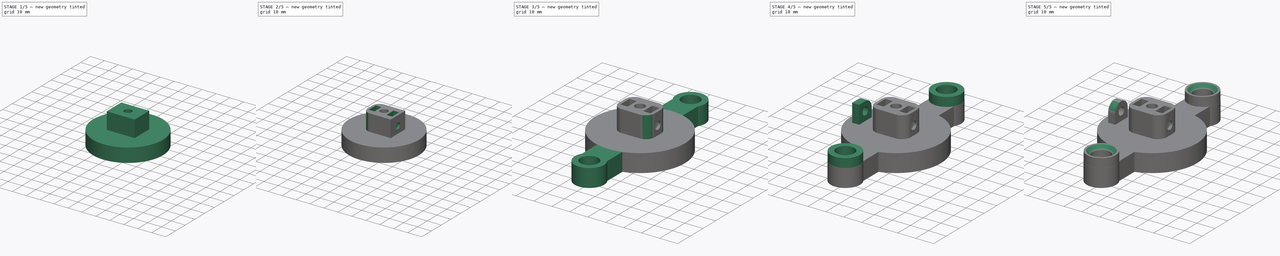
[diagram: build sequence overview — one tinted view per stage of 5, left to right]
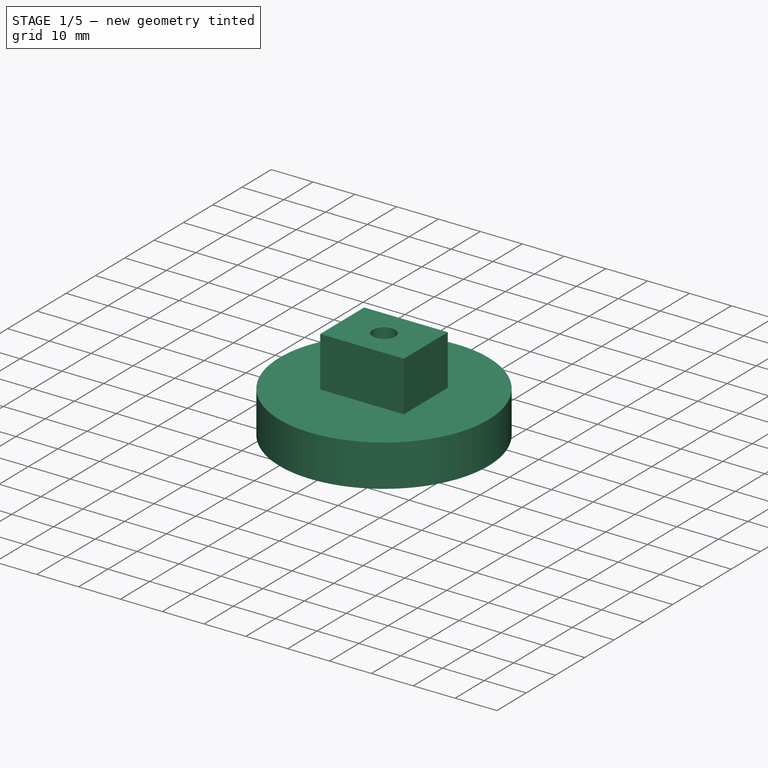
[diagram: stage 1 of 5 — iso view after this stage's code; geometry added in this stage tinted green]
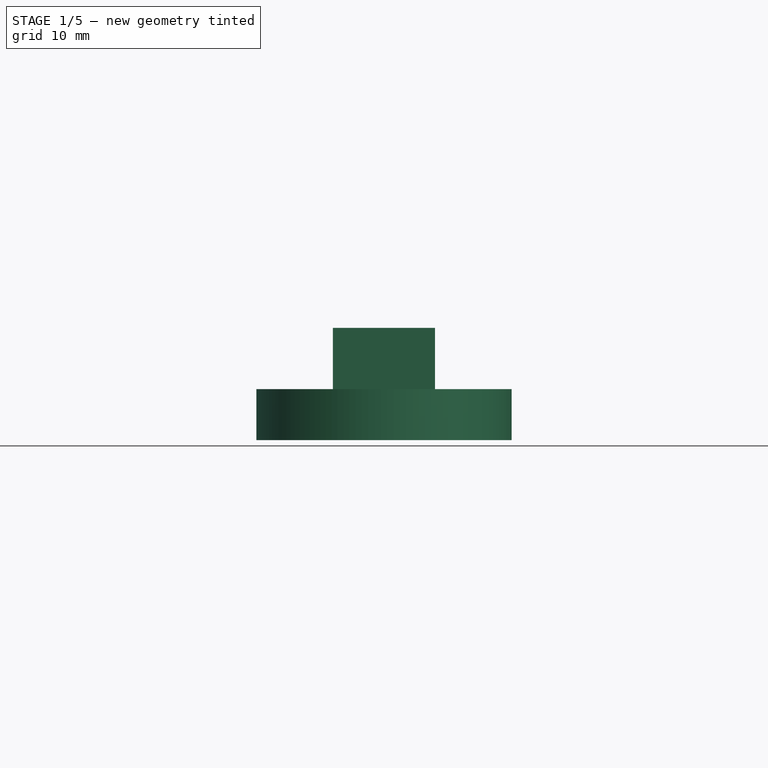
[diagram: stage 1 of 5 — front view after this stage's code; geometry added in this stage tinted green]
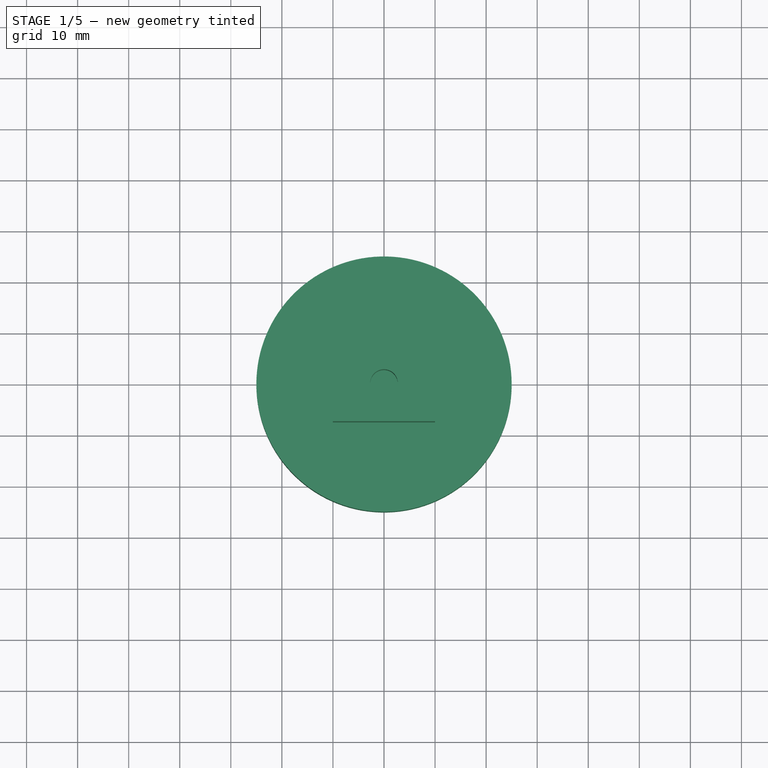
[diagram: stage 1 of 5 — top view after this stage's code; geometry added in this stage tinted green]
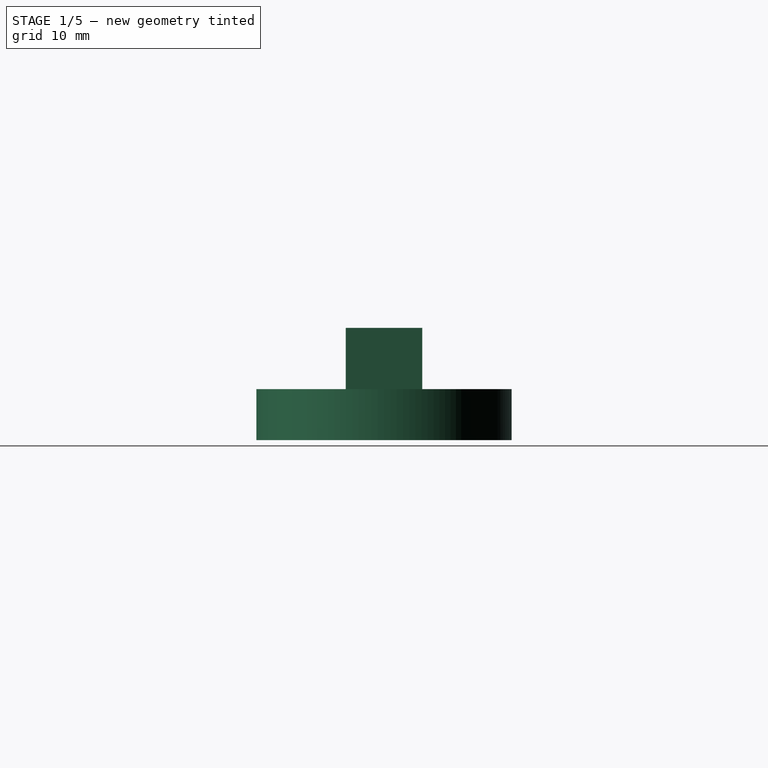
[diagram: stage 1 of 5 — right view after this stage's code; geometry added in this stage tinted green]
FCSTD DOCUMENT  (FreeCAD 0.18R16117 (Git))
Label: TCM2 - Pressa
License: All rights reserved
LicenseURL: http://en.wikipedia.org/wiki/All_rights_reserved
objects: Sketcher::SketchObject×9, PartDesign::Fillet×6, PartDesign::Pad×5, PartDesign::Pocket×4, PartDesign::Chamfer×2, PartDesign::Body×1
note: 36 computed .brp shape members not serialized (recipe doc carries the construction recipe); baked Part::Feature solids carry a one-line shape summary decoded from their .brp

FEATURE [Sketcher::SketchObject] Sketch
  MapMode = 5
  Support = -> [XY_Plane]
  sketch-geometry (1):
    g0: Circle CenterX=0 CenterY=0 CenterZ=0 NormalX=0 NormalY=0 NormalZ=1 AngleXU=0 Radius=25
  constraints (2):
    c: Coincident(g-1,g0)
    c: Radius(g0) = 25
FEATURE [PartDesign::Pad] Pad
  Length = 10
  Length2 = 100
  Profile = -> Sketch
  Type = 0
FEATURE [Sketcher::SketchObject] Sketch001
  MapMode = 5
  Placement = pos=(0,0,10) rot=(0,0,1;0rad)
  Support = -> [Pad]
  sketch-geometry (4):
    g0: LineSegment StartX=-10 StartY=7.5 StartZ=0 EndX=10 EndY=7.5 EndZ=0
    g1: LineSegment StartX=10 StartY=7.5 StartZ=0 EndX=10 EndY=-7.5 EndZ=0
    g2: LineSegment StartX=10 StartY=-7.5 StartZ=0 EndX=-10 EndY=-7.5 EndZ=0
    g3: LineSegment StartX=-10 StartY=-7.5 StartZ=0 EndX=-10 EndY=7.5 EndZ=0
  constraints (12):
    c: Coincident(g0,g1)
    c: Coincident(g1,g2)
    c: Coincident(g2,g3)
    c: Coincident(g3,g0)
    c: Horizontal(g0)
    c: Horizontal(g2)
    c: Vertical(g1)
    c: Vertical(g3)
    c: Distance(g1) = 15
    c: Distance(g0) = 20
    c: DistanceY(g-1,g0) = 7.5
    c: DistanceX(g0,g-1) = 10
FEATURE [PartDesign::Pad] Pad001
  BaseFeature = -> Pad
  Length = 12
  Length2 = 100
  Profile = -> Sketch001
  Type = 0
FEATURE [Sketcher::SketchObject] Sketch002
  MapMode = 5
  Placement = pos=(0,0,22) rot=(0,0,1;0rad)
  Support = -> [Pad001]
  sketch-geometry (1):
    g0: Circle CenterX=0 CenterY=0 CenterZ=0 NormalX=0 NormalY=0 NormalZ=1 AngleXU=0 Radius=2.7
  constraints (2):
    c: Radius(g0) = 2.7
    c: Coincident(g0,g-1)
FEATURE [PartDesign::Pocket] Pocket
  BaseFeature = -> Pad001
  Length = 10
  Length2 = 100
  Profile = -> Sketch002
  Type = 0
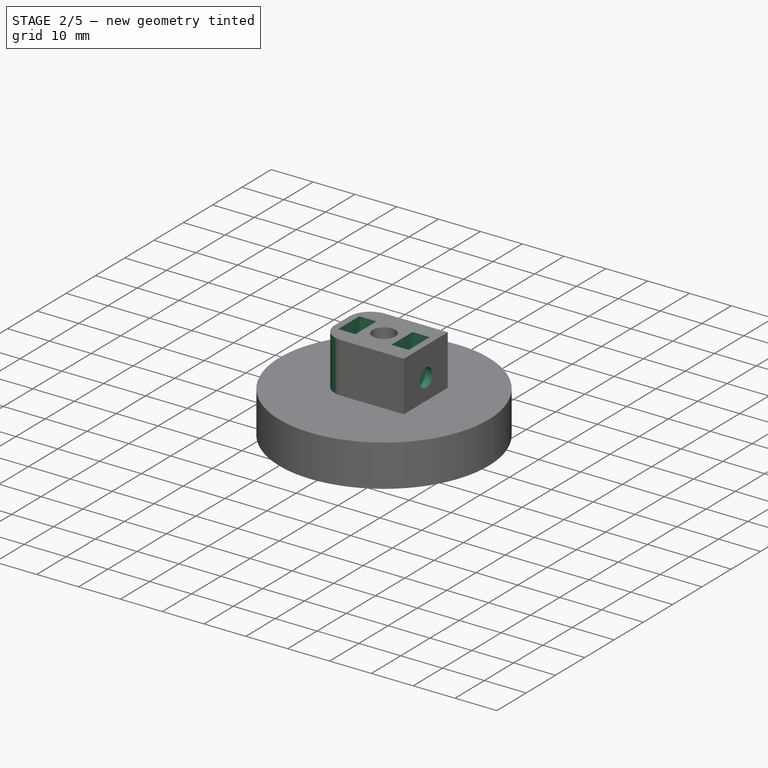
[diagram: stage 2 of 5 — iso view after this stage's code; geometry added in this stage tinted green]
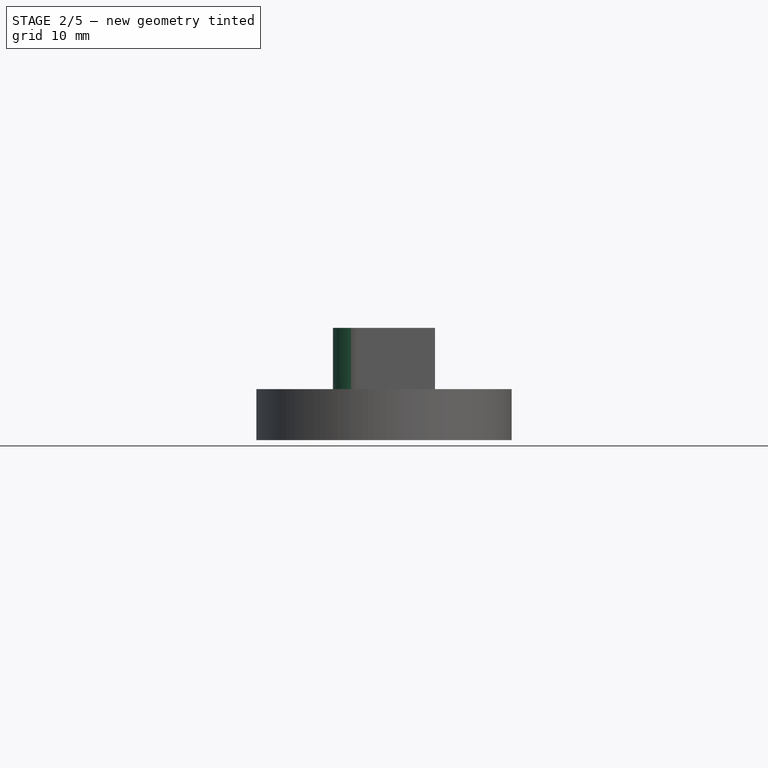
[diagram: stage 2 of 5 — front view after this stage's code; geometry added in this stage tinted green]
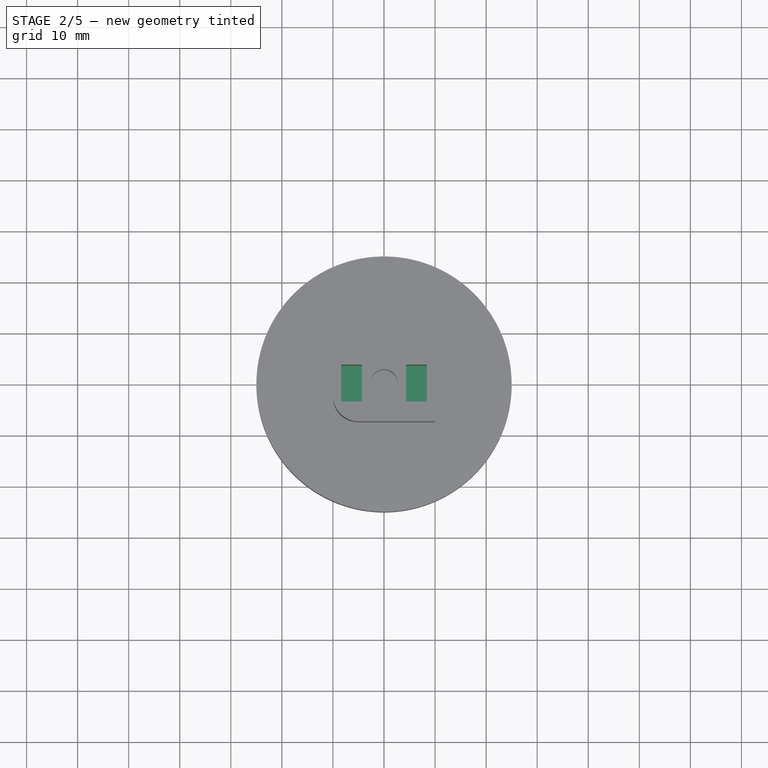
[diagram: stage 2 of 5 — top view after this stage's code; geometry added in this stage tinted green]
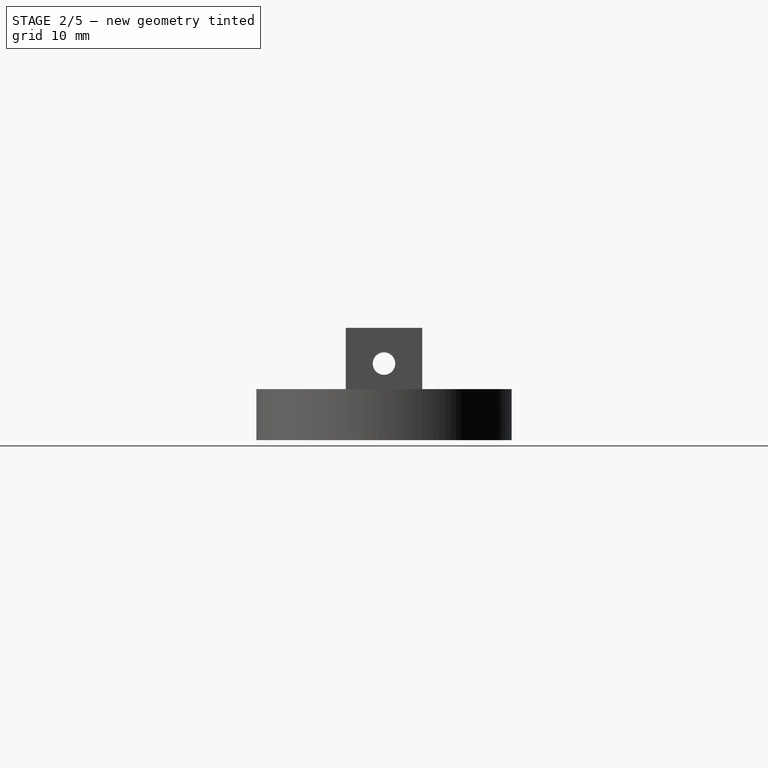
[diagram: stage 2 of 5 — right view after this stage's code; geometry added in this stage tinted green]
FEATURE [Sketcher::SketchObject] Sketch003
  MapMode = 5
  Placement = pos=(0,0,22) rot=(0,0,1;0rad)
  Support = -> [Pocket]
  sketch-geometry (8):
    g0: LineSegment StartX=-8.4 StartY=3.6 StartZ=0 EndX=-4.3 EndY=3.6 EndZ=0
    g1: LineSegment StartX=-4.3 StartY=3.6 StartZ=0 EndX=-4.3 EndY=-3.6 EndZ=0
    g2: LineSegment StartX=-4.3 StartY=-3.6 StartZ=0 EndX=-8.4 EndY=-3.6 EndZ=0
    g3: LineSegment StartX=-8.4 StartY=-3.6 StartZ=0 EndX=-8.4 EndY=3.6 EndZ=0
    g4: LineSegment StartX=4.3 StartY=3.6 StartZ=0 EndX=8.4 EndY=3.6 EndZ=0
    g5: LineSegment StartX=8.4 StartY=3.6 StartZ=0 EndX=8.4 EndY=-3.6 EndZ=0
    g6: LineSegment StartX=8.4 StartY=-3.6 StartZ=0 EndX=4.3 EndY=-3.6 EndZ=0
    g7: LineSegment StartX=4.3 StartY=-3.6 StartZ=0 EndX=4.3 EndY=3.6 EndZ=0
  constraints (24):
    c: Coincident(g0,g1)
    c: Coincident(g1,g2)
    c: Coincident(g2,g3)
    c: Coincident(g3,g0)
    c: Horizontal(g0)
    c: Horizontal(g2)
    c: Vertical(g1)
    c: Vertical(g3)
    c: Distance(g0) = 4.1
    c: DistanceX(g0,g-1) = 4.3
    c: Coincident(g4,g5)
    c: Coincident(g5,g6)
    c: Coincident(g6,g7)
    c: Coincident(g7,g4)
    c: Horizontal(g4)
    c: Horizontal(g6)
    c: Vertical(g5)
    c: Vertical(g7)
    c: Distance(g4) = 4.1
    c: Distance(g7) = 7.2
    c: Distance(g1) = 7.2
    c: DistanceY(g-1,g0) = 3.6
    c: DistanceY(g-1,g4) = 3.6
    c: DistanceX(g-1,g4) = 4.3
FEATURE [PartDesign::Pocket] Pocket001
  BaseFeature = -> Pocket
  Length = 12
  Length2 = 100
  Profile = -> Sketch003
  Type = 0
FEATURE [Sketcher::SketchObject] Sketch004
  MapMode = 5
  Placement = pos=(10,0,0) rot=(0.57735,0.57735,0.57735;2.0944rad)
  Support = -> [Pocket001]
  sketch-geometry (1):
    g0: Circle CenterX=0 CenterY=15 CenterZ=0 NormalX=0 NormalY=0 NormalZ=1 AngleXU=0 Radius=2.2
  constraints (3):
    c: PointOnObject(g0,g-2)
    c: Radius(g0) = 2.2
    c: DistanceY(g-1,g0) = 15
FEATURE [PartDesign::Pocket] Pocket002
  BaseFeature = -> Pocket001
  Length = 30
  Length2 = 100
  Profile = -> Sketch004
  Type = 0
FEATURE [PartDesign::Fillet] Fillet
  Base = -> Pocket002 [Edge8]
  BaseFeature = -> Pocket002
  Radius = 5
FEATURE [PartDesign::Fillet] Fillet001
  Base = -> Fillet [Edge8]
  BaseFeature = -> Fillet
  Radius = 5
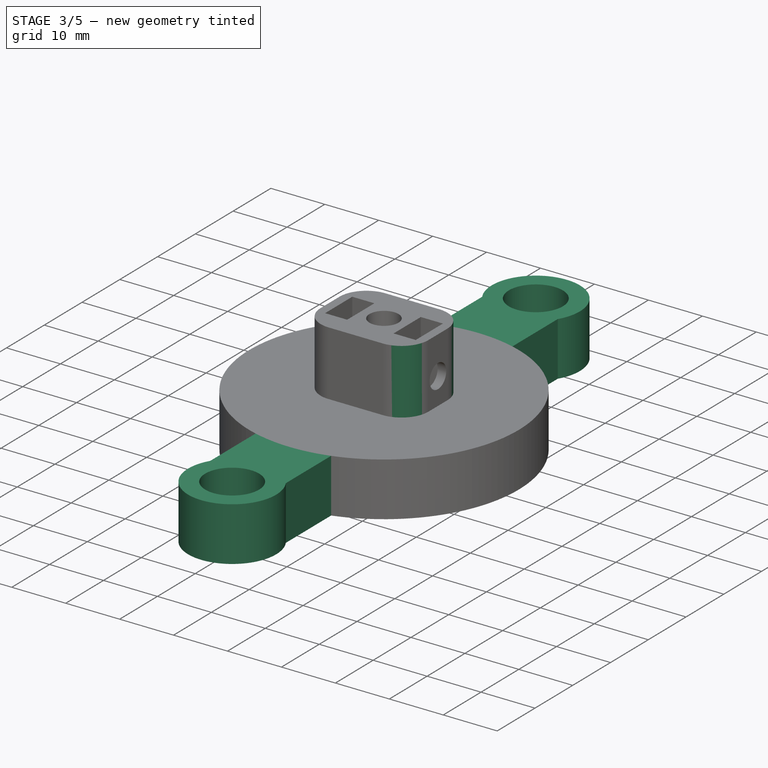
[diagram: stage 3 of 5 — iso view after this stage's code; geometry added in this stage tinted green]
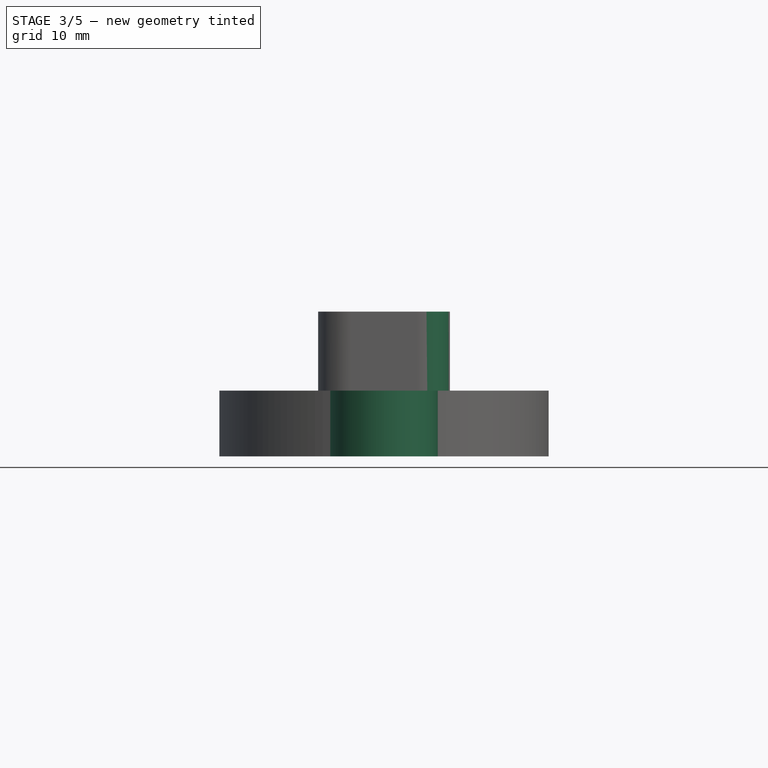
[diagram: stage 3 of 5 — front view after this stage's code; geometry added in this stage tinted green]
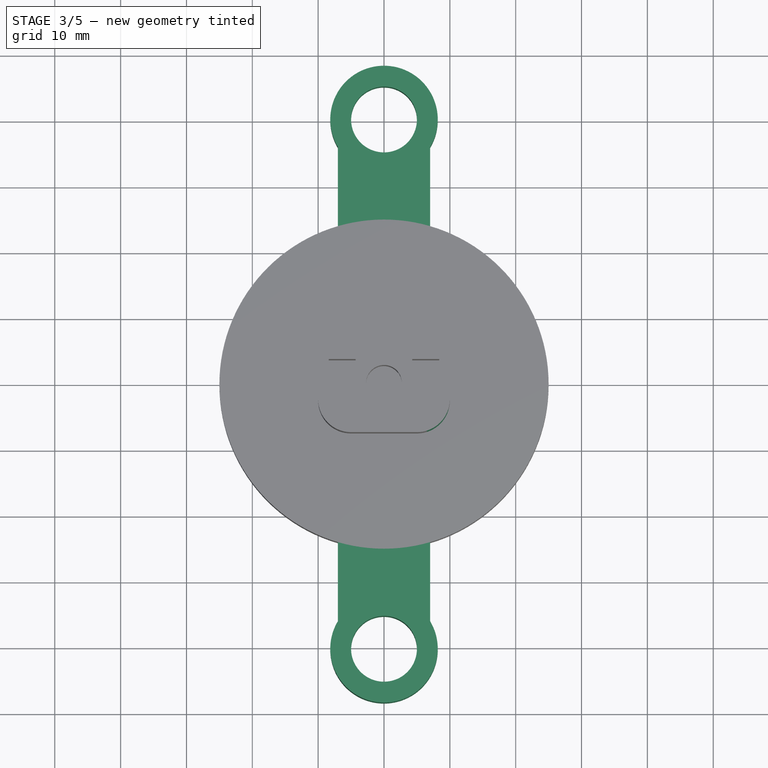
[diagram: stage 3 of 5 — top view after this stage's code; geometry added in this stage tinted green]
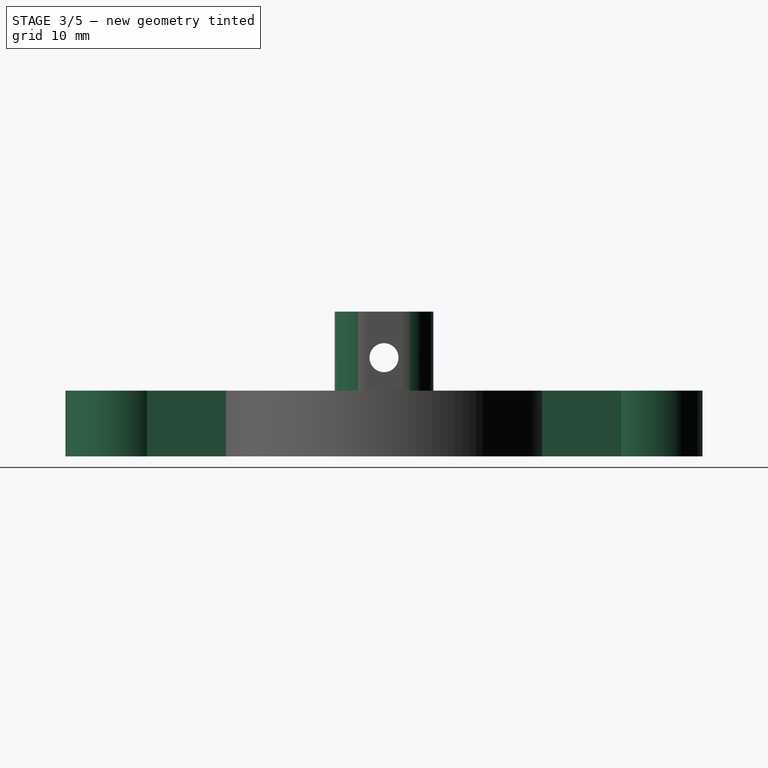
[diagram: stage 3 of 5 — right view after this stage's code; geometry added in this stage tinted green]
FEATURE [PartDesign::Fillet] Fillet002
  Base = -> Fillet001 [Edge16]
  BaseFeature = -> Fillet001
  Radius = 5
FEATURE [PartDesign::Fillet] Fillet003
  Base = -> Fillet002 [Edge16]
  BaseFeature = -> Fillet002
  Radius = 5
FEATURE [Sketcher::SketchObject] Sketch005
  MapMode = 5
  Placement = pos=(0,0,10) rot=(0,0,1;0rad)
  Support = -> [Fillet003]
  sketch-geometry (8):
    g0: LineSegment StartX=-7 StartY=36 StartZ=0 EndX=-7 EndY=-36 EndZ=0
    g1: LineSegment StartX=7 StartY=36 StartZ=0 EndX=7 EndY=-36 EndZ=0
    g2: ArcOfCircle CenterX=9e-16 CenterY=-40.2 CenterZ=0 NormalX=0 NormalY=0 NormalZ=1 AngleXU=0 Radius=8.16333 StartAngle=2.60117 EndAngle=4.71239
    g3: ArcOfCircle CenterX=9e-16 CenterY=-40.2 CenterZ=0 NormalX=0 NormalY=0 NormalZ=1 AngleXU=0 Radius=8.16333 StartAngle=4.71239 EndAngle=6.8236
    g4: ArcOfCircle CenterX=0 CenterY=40.2 CenterZ=0 NormalX=0 NormalY=0 NormalZ=1 AngleXU=0 Radius=8.16333 StartAngle=1.5708 EndAngle=3.68201
    g5: ArcOfCircle CenterX=0 CenterY=40.2 CenterZ=0 NormalX=0 NormalY=0 NormalZ=1 AngleXU=0 Radius=8.16333 StartAngle=5.74277 EndAngle=7.85398
    g6: Circle CenterX=9e-16 CenterY=-40.2 CenterZ=0 NormalX=0 NormalY=0 NormalZ=1 AngleXU=0 Radius=5
    g7: Circle CenterX=0 CenterY=40.2 CenterZ=0 NormalX=0 NormalY=0 NormalZ=1 AngleXU=0 Radius=5
  constraints (24):
    c: Coincident(g4,g5)
    c: Coincident(g4,g0)
    c: Coincident(g1,g5)
    c: Coincident(g0,g2)
    c: Coincident(g1,g3)
    c: Coincident(g3,g2)
    c: PointOnObject(g4,g-2)
    c: Parallel(g0,g-2)
    c: Parallel(g1,g-2)
    c: DistanceX(g0,g-1) = 7
    c: Distance(g1) = 72
    c: Distance(g0) = 72
    c: DistanceY(g0,g-1) = 36
    c: DistanceY(g1,g-1) = 36
    c: Coincident(g2,g3)
    c: Coincident(g6,g2)
    c: Radius(g6) = 5
    c: DistanceY(g2,g1) = 4.2
    c: PointOnObject(g2,g-2)
    c: Coincident(g4,g5)
    c: PointOnObject(g4,g-2)
    c: Coincident(g7,g4)
    c: Radius(g7) = 5
    c: DistanceY(g1,g4) = 4.2
FEATURE [PartDesign::Pad] Pad002
  BaseFeature = -> Fillet003
  Length = 10
  Length2 = 100
  Profile = -> Sketch005
  Reversed = true
  Type = 0
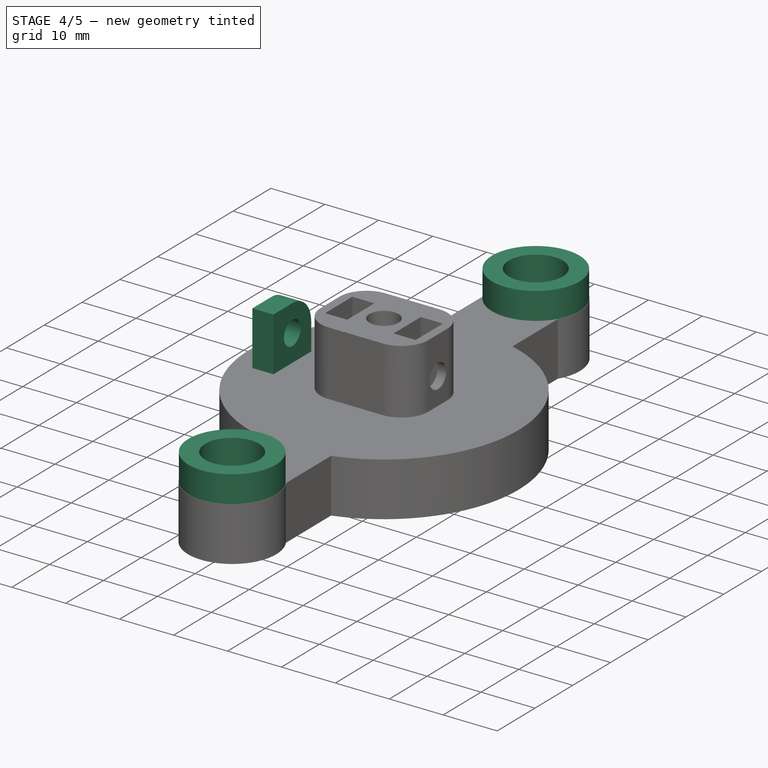
[diagram: stage 4 of 5 — iso view after this stage's code; geometry added in this stage tinted green]
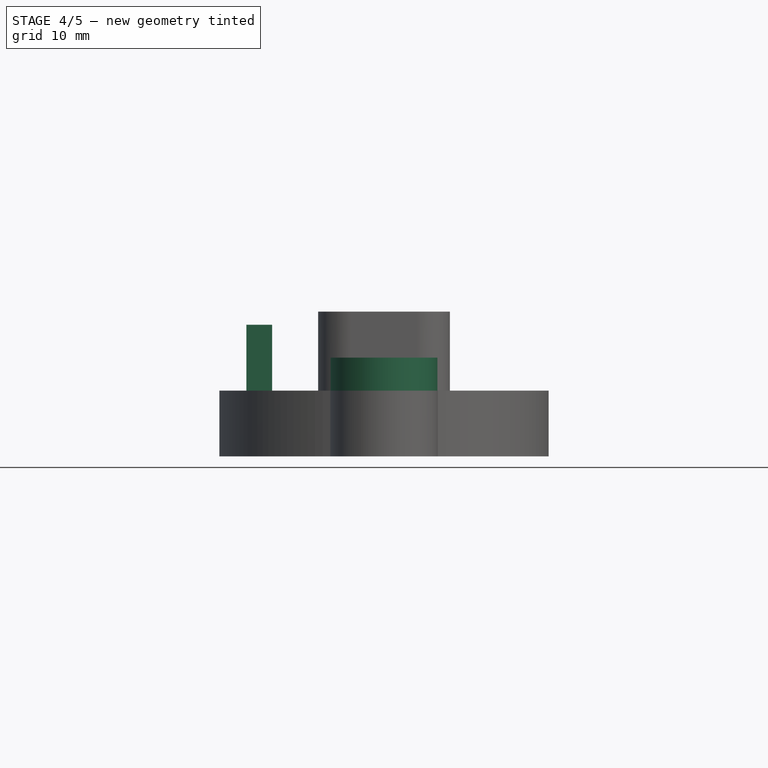
[diagram: stage 4 of 5 — front view after this stage's code; geometry added in this stage tinted green]
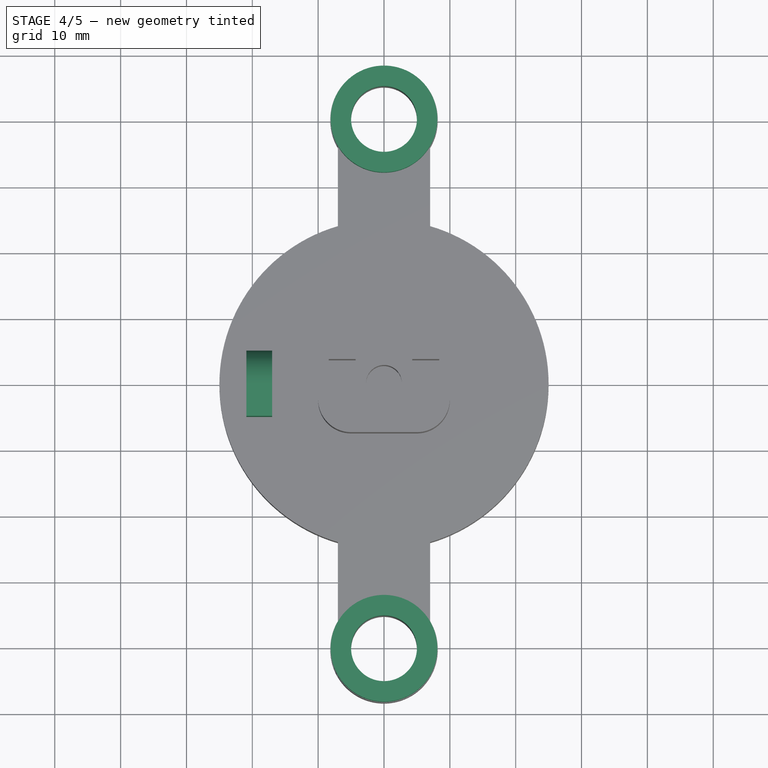
[diagram: stage 4 of 5 — top view after this stage's code; geometry added in this stage tinted green]
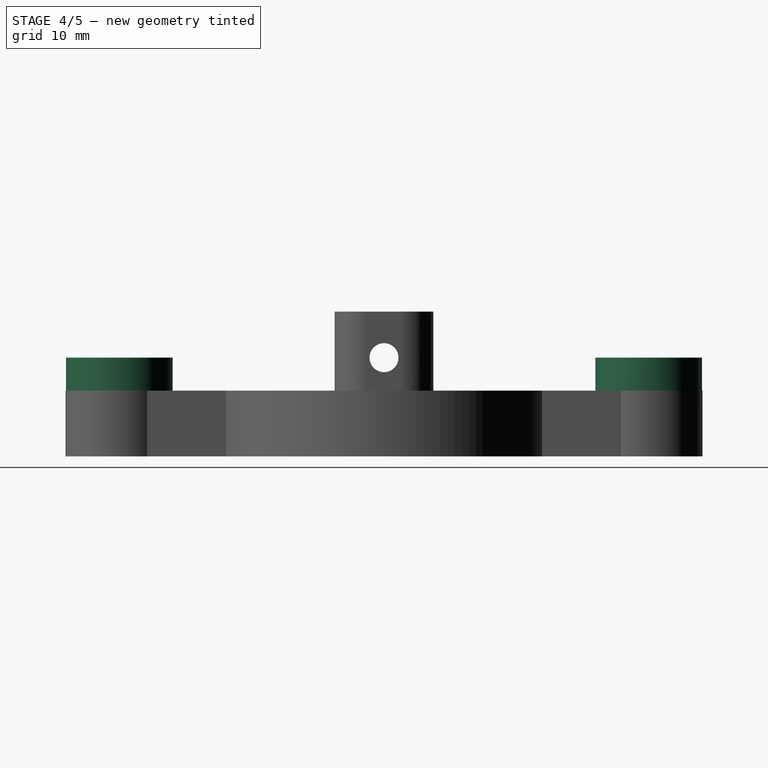
[diagram: stage 4 of 5 — right view after this stage's code; geometry added in this stage tinted green]
FEATURE [Sketcher::SketchObject] Sketch006
  MapMode = 5
  Placement = pos=(0,0,10) rot=(0,0,1;0rad)
  Support = -> [Pad002]
  sketch-geometry (4):
    g0: LineSegment StartX=-20.9 StartY=5 StartZ=0 EndX=-17 EndY=5 EndZ=0
    g1: LineSegment StartX=-17 StartY=5 StartZ=0 EndX=-17 EndY=-5 EndZ=0
    g2: LineSegment StartX=-17 StartY=-5 StartZ=0 EndX=-20.9 EndY=-5 EndZ=0
    g3: LineSegment StartX=-20.9 StartY=-5 StartZ=0 EndX=-20.9 EndY=5 EndZ=0
  constraints (12):
    c: Coincident(g0,g1)
    c: Coincident(g1,g2)
    c: Coincident(g2,g3)
    c: Coincident(g3,g0)
    c: Horizontal(g0)
    c: Horizontal(g2)
    c: Vertical(g1)
    c: Vertical(g3)
    c: Distance(g0) = 3.9
    c: Distance(g1) = 10
    c: DistanceY(g-1,g0) = 5
    c: DistanceX(g0,g-1) = 17
FEATURE [PartDesign::Pad] Pad003
  BaseFeature = -> Pad002
  Length = 10
  Length2 = 100
  Profile = -> Sketch006
  Type = 0
FEATURE [Sketcher::SketchObject] Sketch007
  MapMode = 5
  Placement = pos=(-20.9,0,0) rot=(0.57735,-0.57735,-0.57735;2.0944rad)
  Support = -> [Pad003]
  sketch-geometry (1):
    g0: Circle CenterX=0 CenterY=15 CenterZ=0 NormalX=0 NormalY=0 NormalZ=1 AngleXU=0 Radius=2.2
  constraints (3):
    c: PointOnObject(g0,g-2)
    c: Radius(g0) = 2.2
    c: DistanceY(g-1,g0) = 15
FEATURE [PartDesign::Pocket] Pocket003
  BaseFeature = -> Pad003
  Length = 4
  Length2 = 100
  Profile = -> Sketch007
  Type = 0
FEATURE [Sketcher::SketchObject] Sketch008
  MapMode = 5
  Placement = pos=(0,0,10) rot=(0,0,1;0rad)
  Support = -> [Pocket003]
  sketch-geometry (4):
    g0: Circle CenterX=0 CenterY=40.2 CenterZ=0 NormalX=0 NormalY=0 NormalZ=1 AngleXU=0 Radius=8.1
    g1: Circle CenterX=0 CenterY=40.2 CenterZ=0 NormalX=0 NormalY=0 NormalZ=1 AngleXU=0 Radius=5
    g2: Circle CenterX=0 CenterY=-40.2 CenterZ=0 NormalX=0 NormalY=0 NormalZ=1 AngleXU=0 Radius=5
    g3: Circle CenterX=0 CenterY=-40.2 CenterZ=0 NormalX=0 NormalY=0 NormalZ=1 AngleXU=0 Radius=8.1
  constraints (10):
    c: PointOnObject(g0,g-2)
    c: Coincident(g1,g0)
    c: Radius(g1) = 5
    c: DistanceY(g-1,g0) = 40.2
    c: Radius(g0) = 8.1
    c: Coincident(g3,g2)
    c: Radius(g3) = 8.1
    c: Radius(g2) = 5
    c: PointOnObject(g2,g-2)
    c: DistanceY(g2,g-1) = 40.2
FEATURE [PartDesign::Pad] Pad004
  BaseFeature = -> Pocket003
  Length = 5
  Length2 = 100
  Profile = -> Sketch008
  Type = 0
FEATURE [PartDesign::Fillet] Fillet004
  Base = -> Pad004 [Edge117]
  BaseFeature = -> Pad004
  Radius = 5
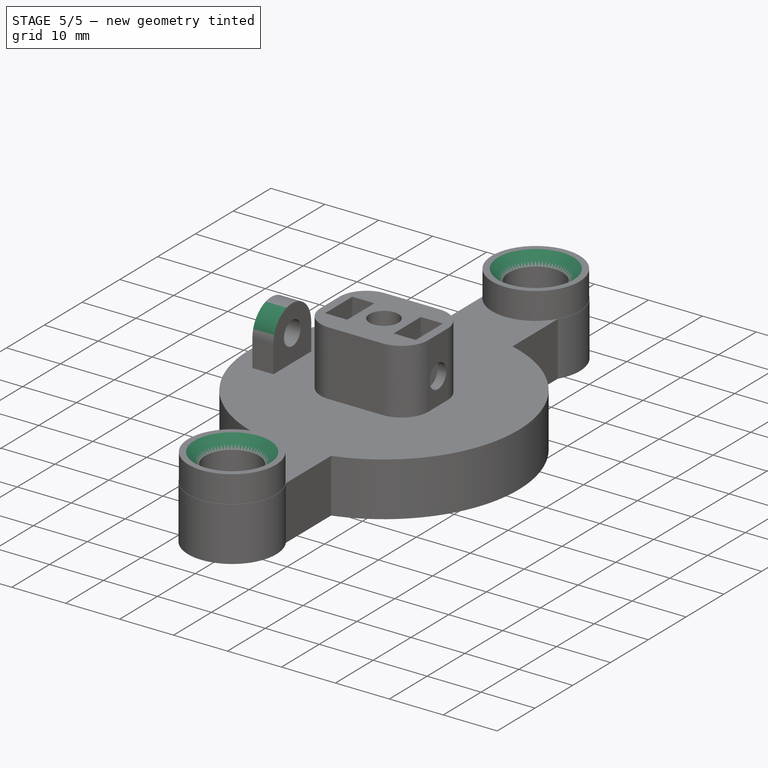
[diagram: stage 5 of 5 — iso view after this stage's code; geometry added in this stage tinted green]
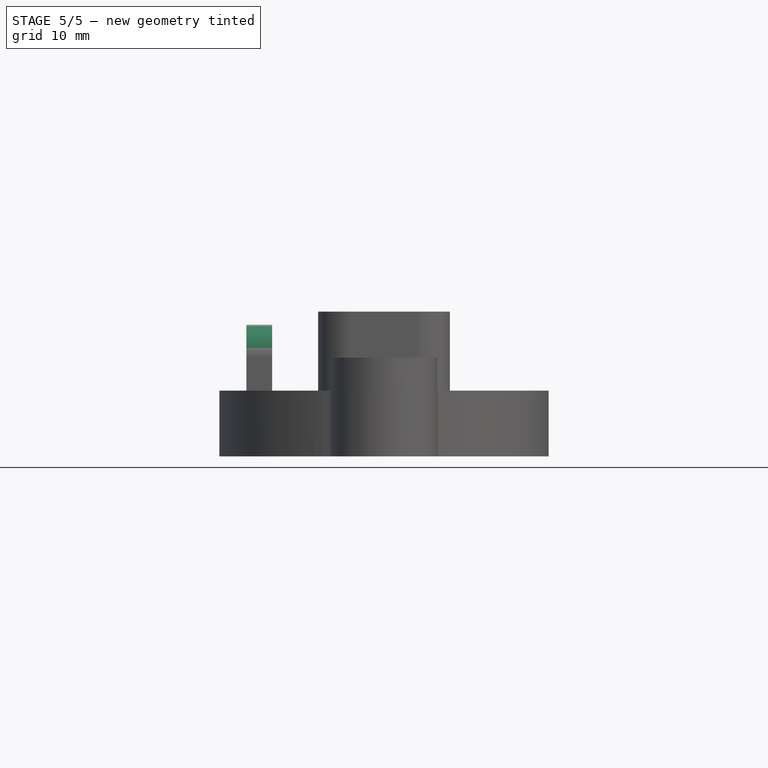
[diagram: stage 5 of 5 — front view after this stage's code; geometry added in this stage tinted green]
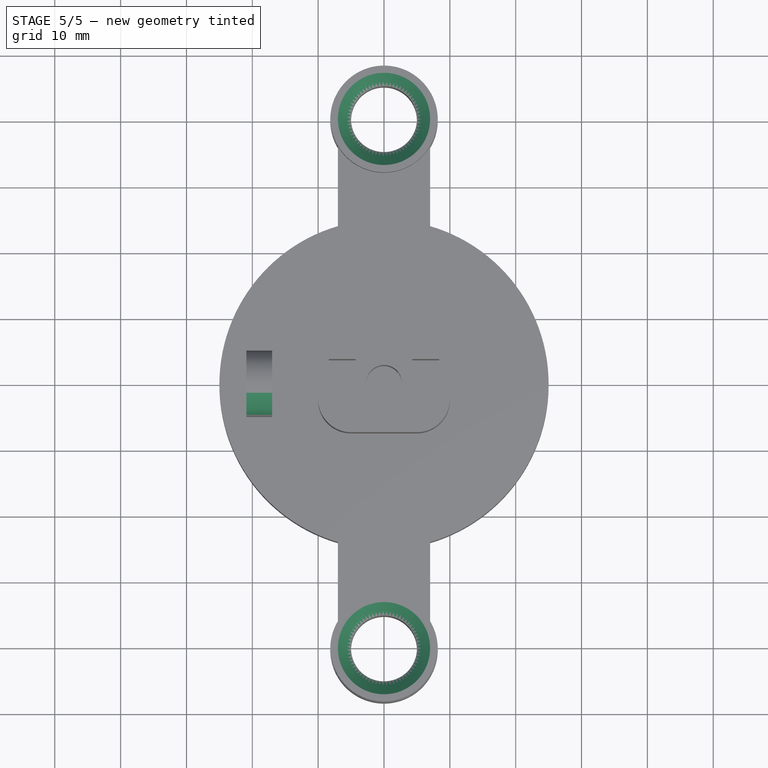
[diagram: stage 5 of 5 — top view after this stage's code; geometry added in this stage tinted green]
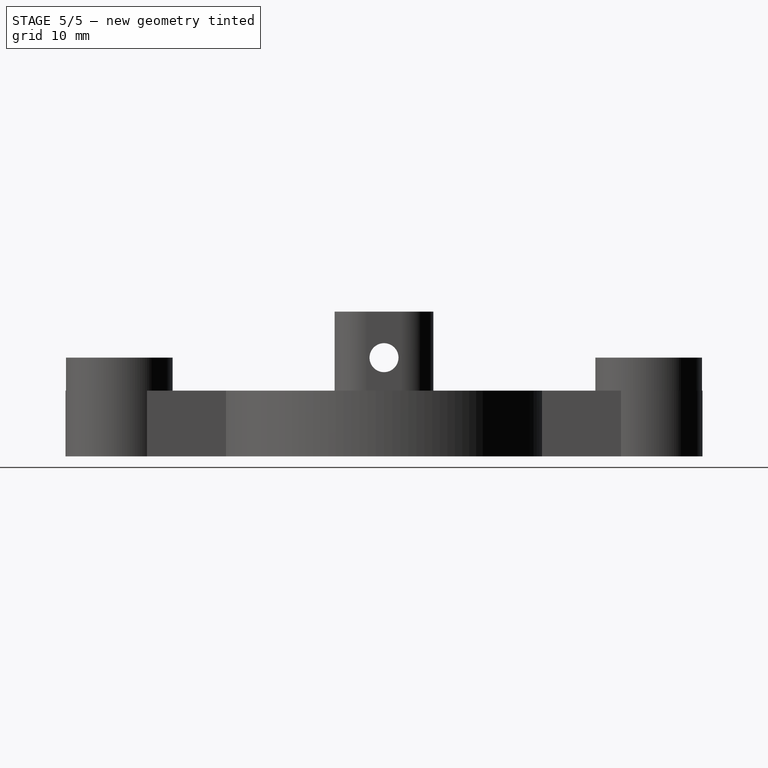
[diagram: stage 5 of 5 — right view after this stage's code; geometry added in this stage tinted green]
FEATURE [PartDesign::Fillet] Fillet005
  Base = -> Fillet004 [Edge9]
  BaseFeature = -> Fillet004
  Radius = 4.95
FEATURE [PartDesign::Chamfer] Chamfer
  Base = -> Fillet005 [Edge149]
  BaseFeature = -> Fillet005
  Size = 2
FEATURE [PartDesign::Chamfer] Chamfer001
  Base = -> Chamfer [Edge158]
  BaseFeature = -> Chamfer
  Size = 2
FEATURE [PartDesign::Body] Body
  Group = -> [Sketch,Pad,Sketch001,Pad001,Sketch002,Pocket,Sketch003,Pocket001,Sketch004,Pocket002,Fillet,Fillet001,Fillet002,Fillet003,Sketch005,Pad002,Sketch006,Pad003,Sketch007,Pocket003,Sketch008,Pad004,Fillet004,Fillet005,Chamfer,Chamfer001]
  Origin = -> Origin
  Tip = -> Chamfer001
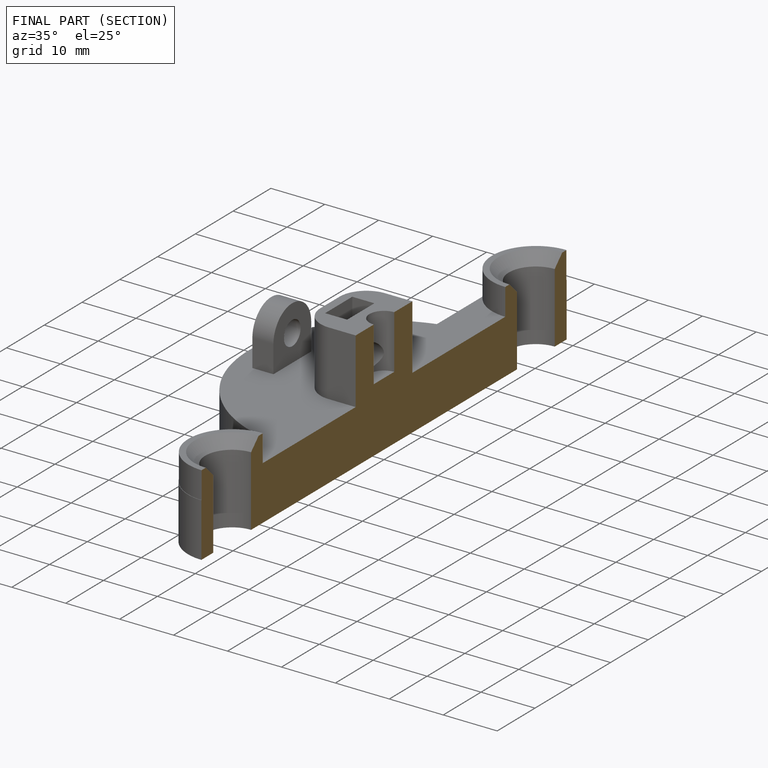
[diagram: finished part — half-section view (interior)]
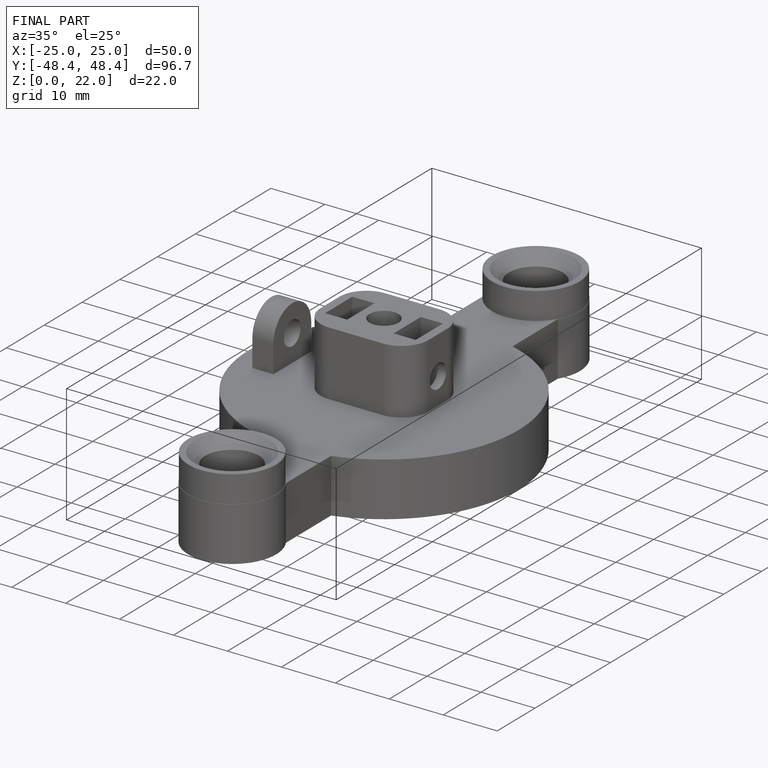
[diagram: finished part — iso view with bounding-box wireframe]
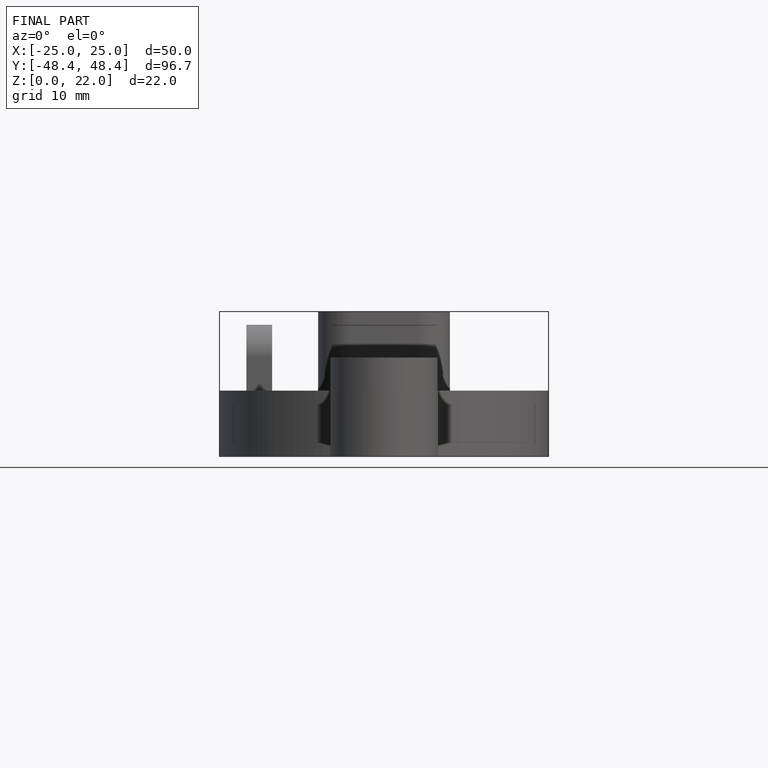
[diagram: finished part — front view with bounding-box wireframe]
